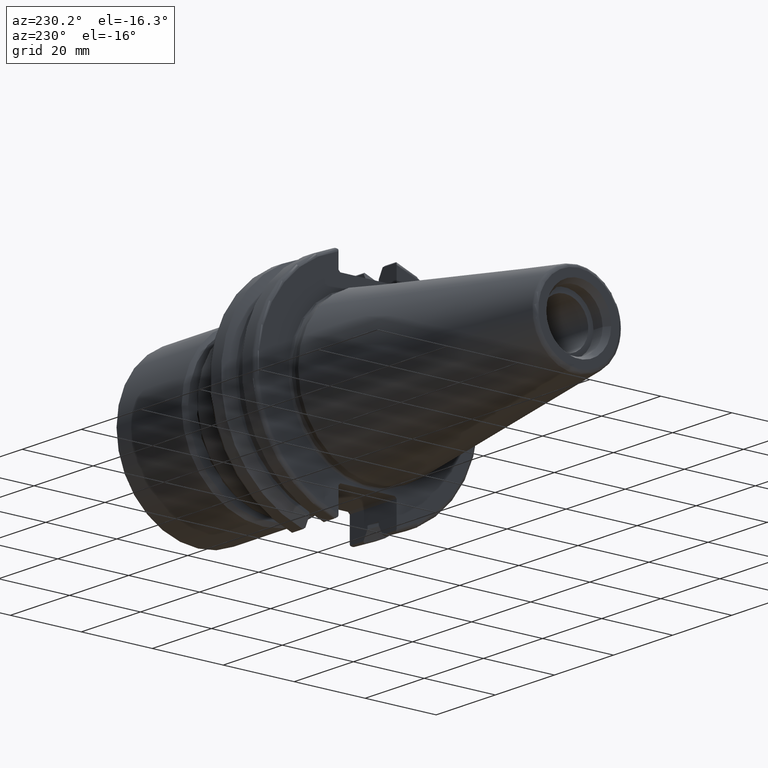
[diagram: clean part render]
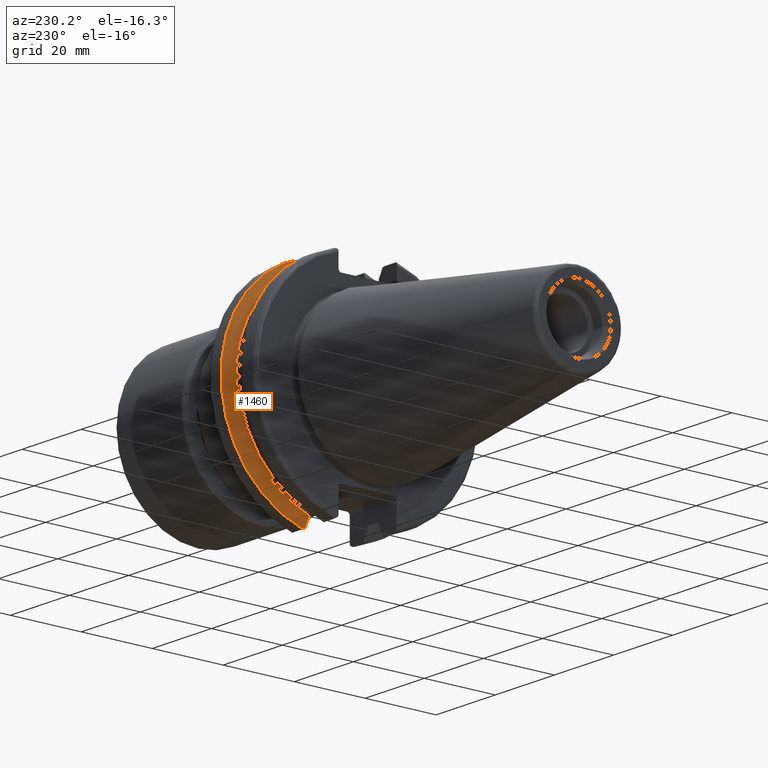
[diagram: same view with one face highlighted and labeled with its STEP entity id]
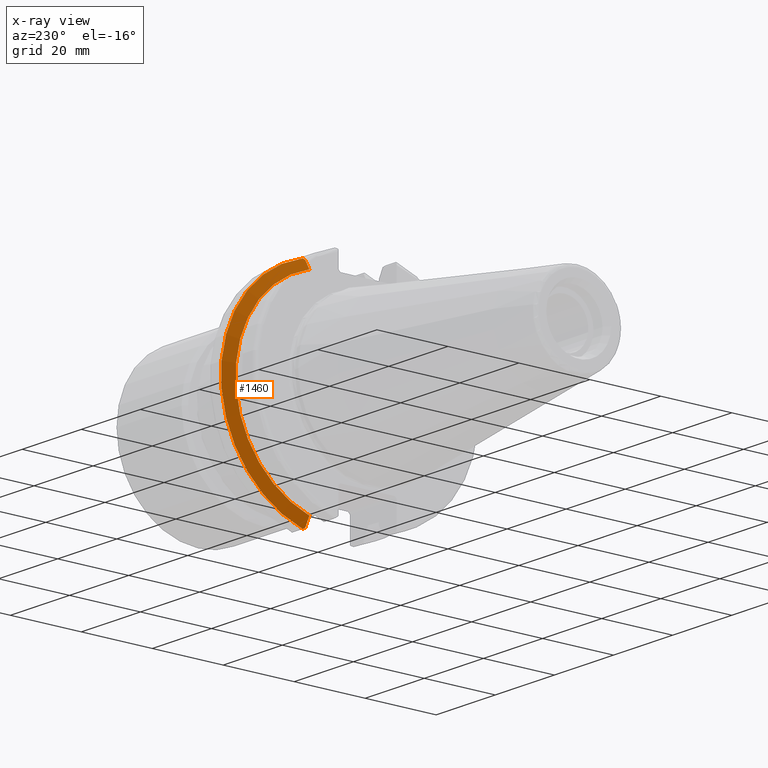
[diagram: x-ray of the same camera — body ghosted, the highlighted face saturated]
A machine part, auxiliary view. The second image highlights one B-rep face of the part: STEP entity #1460.
The next image is the same camera in x-ray: the body ghosted, the highlighted face saturated — about 0% of this face is hidden behind the body in this view.
In plain terms, the highlighted conical surface has half-angle 60 deg.
Its self-contained STEP definition (entity closure, byte-faithful):
#248=(
BOUNDED_CURVE()
B_SPLINE_CURVE(2,(#2372,#2373,#2374),.UNSPECIFIED.,.F.,.F.)
B_SPLINE_CURVE_WITH_KNOTS((3,3),(0.329353533631226,0.393258405001025),
 .UNSPECIFIED.)
CURVE()
GEOMETRIC_REPRESENTATION_ITEM()
RATIONAL_B_SPLINE_CURVE((1.00047644010577,1.00028444218285,1.))
REPRESENTATION_ITEM('')
);
#250=(
BOUNDED_CURVE()
B_SPLINE_CURVE(2,(#2397,#2398,#2399),.UNSPECIFIED.,.F.,.F.)
B_SPLINE_CURVE_WITH_KNOTS((3,3),(0.0550586467393769,0.331607789535852),
 .UNSPECIFIED.)
CURVE()
GEOMETRIC_REPRESENTATION_ITEM()
RATIONAL_B_SPLINE_CURVE((1.00031614444922,1.00095203903643,1.))
REPRESENTATION_ITEM('')
);
#258=(
BOUNDED_CURVE()
B_SPLINE_CURVE(2,(#2582,#2583,#2584),.UNSPECIFIED.,.F.,.F.)
B_SPLINE_CURVE_WITH_KNOTS((3,3),(0.,0.276549142795274),.UNSPECIFIED.)
CURVE()
GEOMETRIC_REPRESENTATION_ITEM()
RATIONAL_B_SPLINE_CURVE((1.,1.00095203903599,1.00031614444907))
REPRESENTATION_ITEM('')
);
#262=(
BOUNDED_CURVE()
B_SPLINE_CURVE(2,(#2613,#2614,#2615),.UNSPECIFIED.,.F.,.F.)
B_SPLINE_CURVE_WITH_KNOTS((3,3),(0.,0.0639048713675655),.UNSPECIFIED.)
CURVE()
GEOMETRIC_REPRESENTATION_ITEM()
RATIONAL_B_SPLINE_CURVE((1.,1.00028444218286,1.00047644010578))
REPRESENTATION_ITEM('')
);
#270=CONICAL_SURFACE('',#1696,30.3546886482472,1.0471975511966);
#569=FACE_OUTER_BOUND('',#649,.T.);
#649=EDGE_LOOP('',(#1319,#1320,#1321,#1322,#1323,#1324));
#716=CIRCLE('',#1679,31.75);
#725=CIRCLE('',#1697,28.9593772964944);
#797=VERTEX_POINT('',#2369);
#798=VERTEX_POINT('',#2371);
#804=VERTEX_POINT('',#2395);
#836=VERTEX_POINT('',#2579);
#837=VERTEX_POINT('',#2581);
#844=VERTEX_POINT('',#2611);
#931=EDGE_CURVE('',#797,#798,#248,.T.);
#940=EDGE_CURVE('',#797,#804,#250,.T.);
#991=EDGE_CURVE('',#837,#836,#258,.T.);
#1003=EDGE_CURVE('',#844,#836,#262,.T.);
#1004=EDGE_CURVE('',#798,#844,#716,.T.);
#1017=EDGE_CURVE('',#804,#837,#725,.T.);
#1319=ORIENTED_EDGE('',*,*,#931,.F.);
#1320=ORIENTED_EDGE('',*,*,#940,.T.);
#1321=ORIENTED_EDGE('',*,*,#1017,.T.);
#1322=ORIENTED_EDGE('',*,*,#991,.T.);
#1323=ORIENTED_EDGE('',*,*,#1003,.F.);
#1324=ORIENTED_EDGE('',*,*,#1004,.F.);
#1460=ADVANCED_FACE('',(#569),#270,.T.);
#1679=AXIS2_PLACEMENT_3D('',#2617,#2011,#2012);
#1696=AXIS2_PLACEMENT_3D('',#2644,#2048,#2049);
#1697=AXIS2_PLACEMENT_3D('',#2645,#2050,#2051);
#2011=DIRECTION('center_axis',(1.,0.,0.));
#2012=DIRECTION('ref_axis',(0.,0.,-1.));
#2048=DIRECTION('center_axis',(1.,0.,0.));
#2049=DIRECTION('ref_axis',(0.,1.,0.));
#2050=DIRECTION('center_axis',(1.,0.,0.));
#2051=DIRECTION('ref_axis',(0.,0.,-1.));
#2369=CARTESIAN_POINT('',(14.3815146964874,8.19,-30.1755016258903));
#2371=CARTESIAN_POINT('',(14.6602667690756,8.67204822802685,-30.5427254764662));
#2372=CARTESIAN_POINT('Ctrl Pts',(14.3815146964874,8.19,-30.1755016258903));
#2373=CARTESIAN_POINT('Ctrl Pts',(14.5192085187884,8.42917748263464,-30.3577067892692));
#2374=CARTESIAN_POINT('Ctrl Pts',(14.6602667690756,8.67204822802686,-30.5427254764662));
#2395=CARTESIAN_POINT('',(13.0491,8.19,-27.7771386827498));
#2397=CARTESIAN_POINT('Ctrl Pts',(14.3815146964874,8.18999999999999,-30.1755016258903));
#2398=CARTESIAN_POINT('Ctrl Pts',(13.687736438474,8.19,-28.9303689539668));
#2399=CARTESIAN_POINT('Ctrl Pts',(13.0491,8.19,-27.7771386827498));
#2579=CARTESIAN_POINT('',(14.3815146964874,8.19,30.1755016258903));
#2581=CARTESIAN_POINT('',(13.0491,8.19,27.7771386827498));
#2582=CARTESIAN_POINT('Ctrl Pts',(13.0491,8.19,27.7771386827498));
#2583=CARTESIAN_POINT('Ctrl Pts',(13.687736438489,8.19,28.9303689539938));
#2584=CARTESIAN_POINT('Ctrl Pts',(14.3815146964874,8.19,30.1755016258903));
#2611=CARTESIAN_POINT('',(14.6602667690756,8.67204822802685,30.5427254764662));
#2613=CARTESIAN_POINT('Ctrl Pts',(14.6602667690756,8.67204822802687,30.5427254764662));
#2614=CARTESIAN_POINT('Ctrl Pts',(14.5192085187837,8.42917748262644,30.357706789263));
#2615=CARTESIAN_POINT('Ctrl Pts',(14.3815146964874,8.19,30.1755016258903));
#2617=CARTESIAN_POINT('Origin',(14.6602667690756,0.,0.));
#2644=CARTESIAN_POINT('Origin',(13.8546833845378,0.,0.));
#2645=CARTESIAN_POINT('Origin',(13.0491,0.,0.));